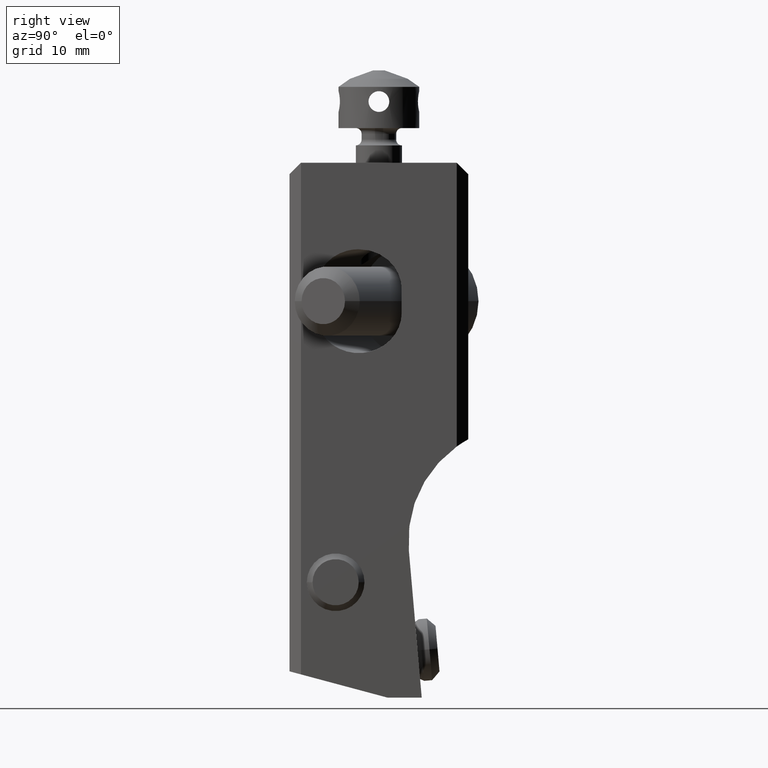
[diagram: clean part render]
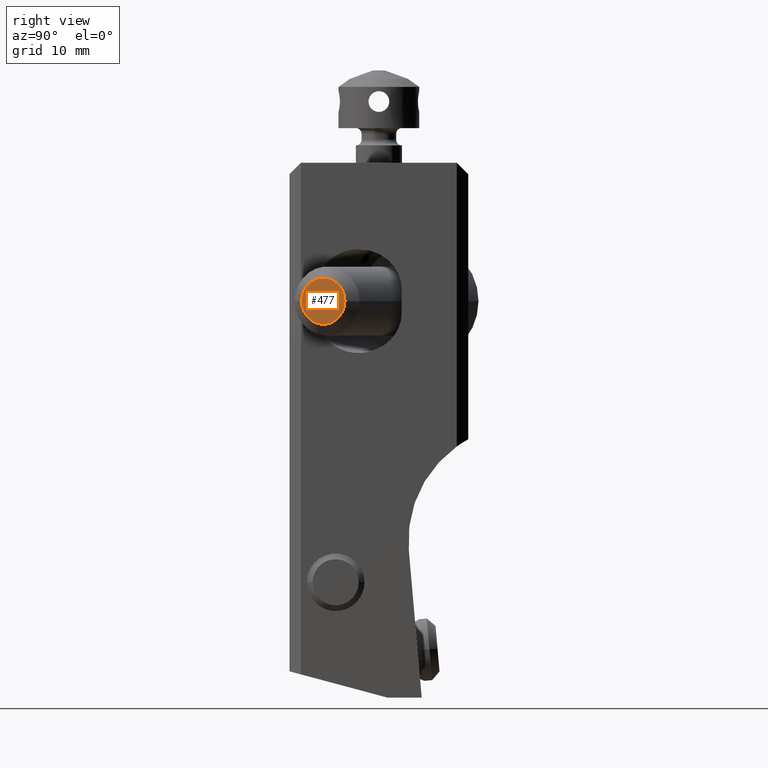
[diagram: same view with one face highlighted and labeled with its STEP entity id]
A machine part, right view. The second image highlights one B-rep face of the part: STEP entity #477.
In plain terms, the highlighted planar face has unit normal (0.9397, -0.342, 0).
Its self-contained STEP definition (entity closure, byte-faithful):
#340=CIRCLE('',#2917,2.000000000003);
#341=CIRCLE('',#2918,2.000000000003);
#477=ADVANCED_FACE('',(#656),#536,.T.);
#536=PLANE('',#2919);
#656=FACE_OUTER_BOUND('',#807,.T.);
#807=EDGE_LOOP('',(#1504,#1505));
#1504=ORIENTED_EDGE('',*,*,#2155,.F.);
#1505=ORIENTED_EDGE('',*,*,#2156,.F.);
#1801=VERTEX_POINT('',#5245);
#1802=VERTEX_POINT('',#5246);
#2155=EDGE_CURVE('',#1801,#1802,#340,.T.);
#2156=EDGE_CURVE('',#1802,#1801,#341,.T.);
#2917=AXIS2_PLACEMENT_3D('',#5244,#3661,#3662);
#2918=AXIS2_PLACEMENT_3D('',#5247,#3663,#3664);
#2919=AXIS2_PLACEMENT_3D('',#5248,#3665,#3666);
#3661=DIRECTION('',(-0.939692620785421,0.342020143327008,0.));
#3662=DIRECTION('',(-0.342020143327008,-0.939692620785421,0.));
#3663=DIRECTION('',(-0.939692620785421,0.342020143327008,0.));
#3664=DIRECTION('',(0.342020143327008,0.939692620785421,0.));
#3665=DIRECTION('',(0.939692620785897,-0.342020143325699,0.));
#3666=DIRECTION('',(0.342020143325699,0.939692620785897,0.));
#5244=CARTESIAN_POINT('',(8.432008140438,2.931000021794,-12.));
#5245=CARTESIAN_POINT('',(7.747967853782,1.05161478022,-12.));
#5246=CARTESIAN_POINT('',(9.116048427092,4.810385263364,-12.));
#5247=CARTESIAN_POINT('',(8.432008140438,2.931000021794,-12.));
#5248=CARTESIAN_POINT('',(8.432008140434,2.931000021792,-12.));